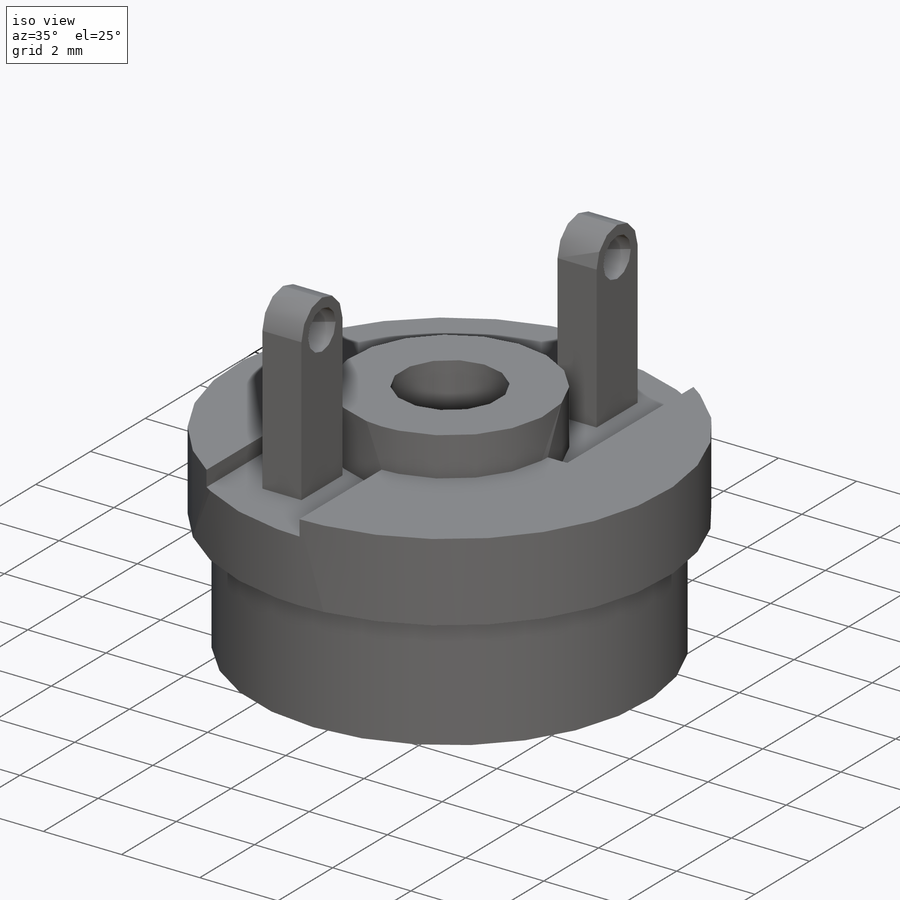
[diagram: iso view]
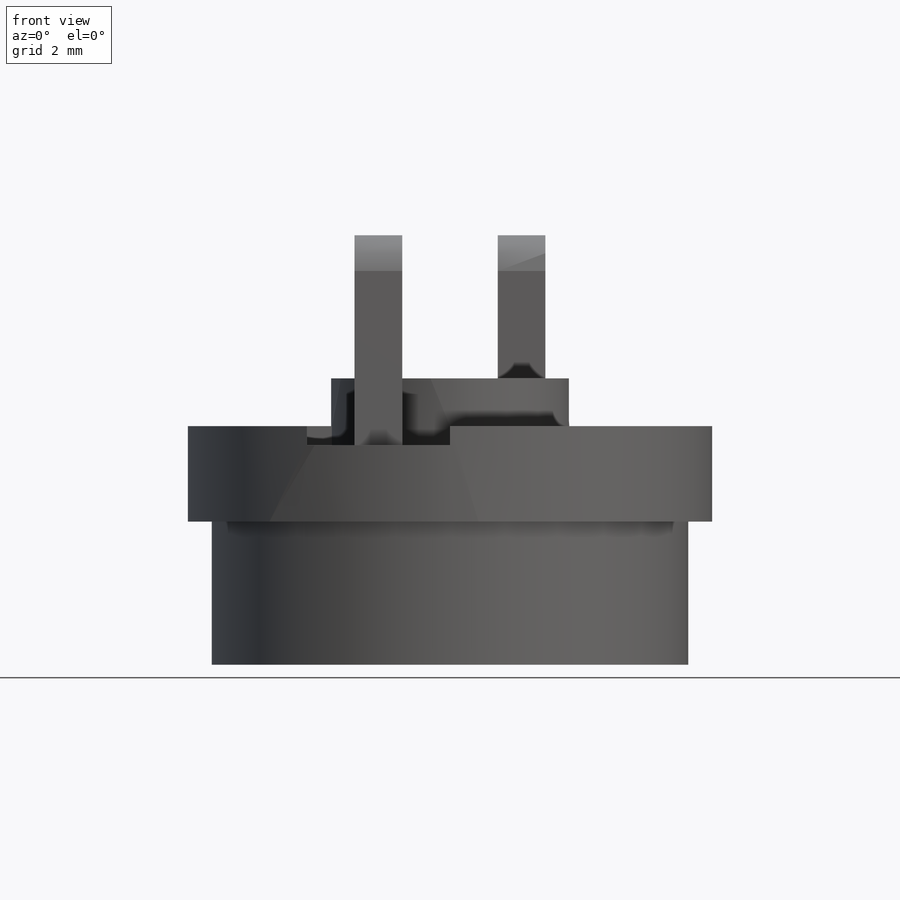
[diagram: front view]
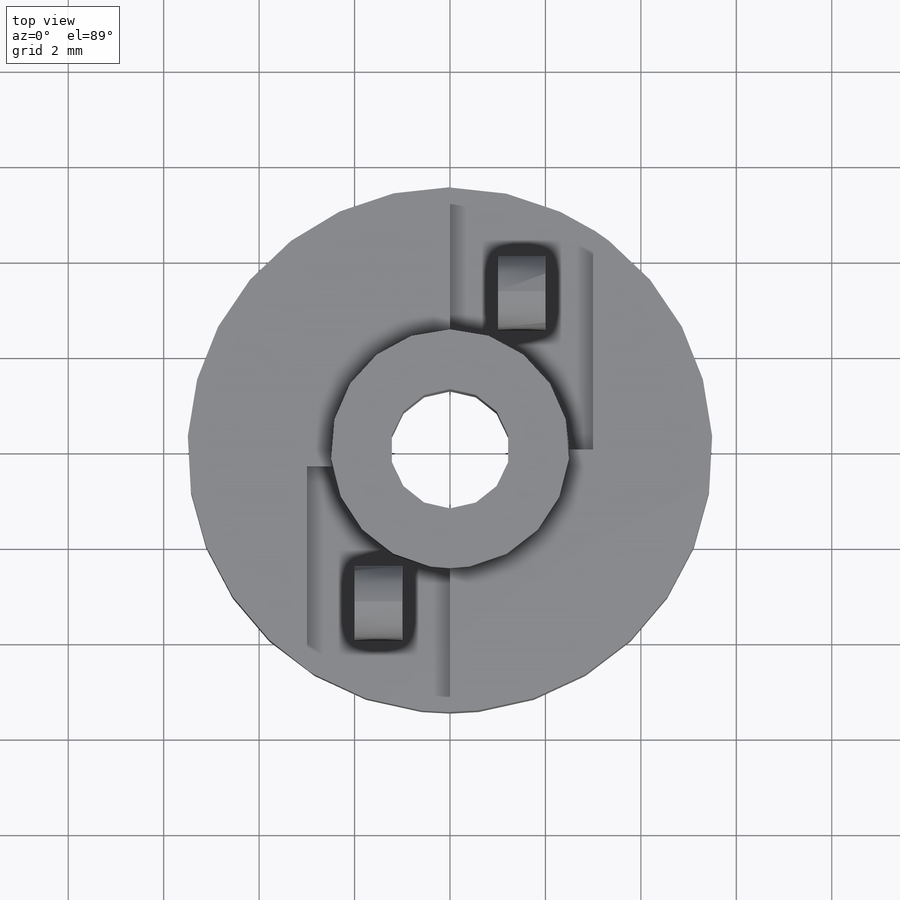
[diagram: top view]
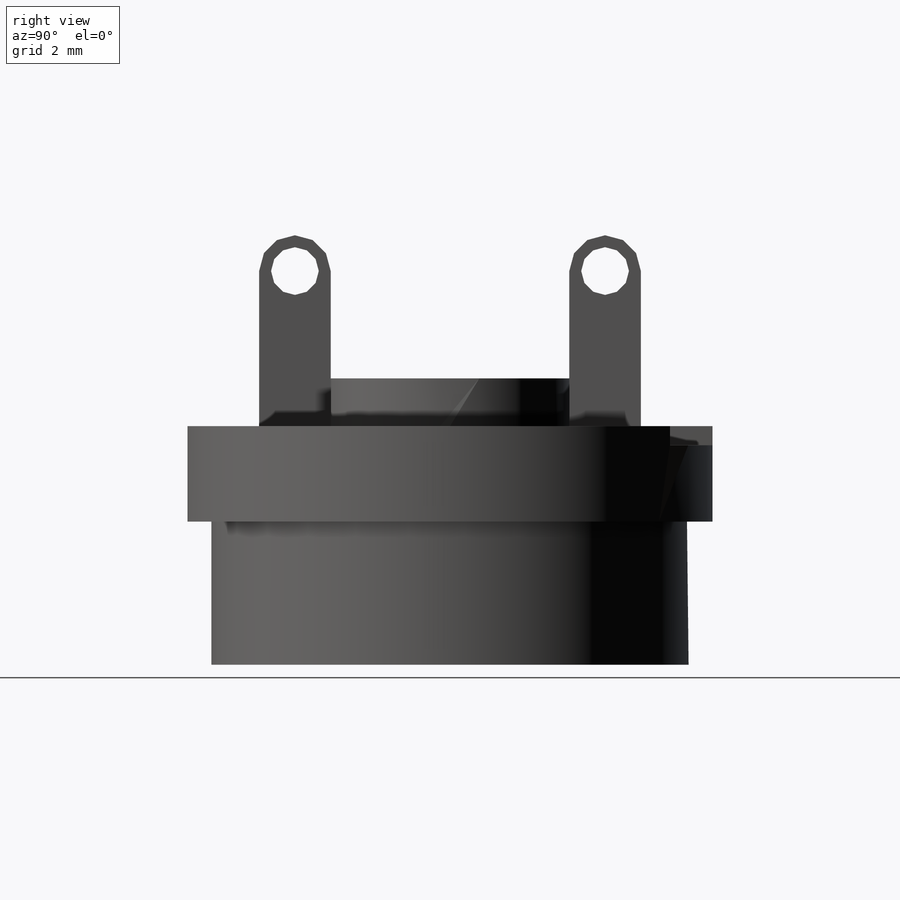
[diagram: right view]
SOLIDWORKS PART (.sldprt)
format: sldprt  version: not decoded by parser v0  size: 571,904 bytes
history: native  units: mm
features: sketch x11, extrude x10, plane x5, fillet x2, material x1, cut_extrude x1 + 1 further entry (+10 scaffold rows collapsed)
feature tree (41):
  scaffold x10  (default folders/planes/origin — collapsed)
  material  "ABS"
  "Corps de surface"
  plane  "Face"
  plane  "Dessus"
  plane  "Droite"
  sketch  "Esquisse1"  dims[D1=11.0mm D2=18.3mm]
  extrude  "Base-Extrusion"  Depth=2mm
  sketch  "Esquisse15"  dims[D1=10.0mm]
  extrude  "Extrusion1"  Depth=3mm
  sketch  "Esquisse5"  dims[D1=5.0mm D2=8.0mm]
  extrude  "Boss.-Extru.2"  Depth=1mm
  sketch  "Esquisse6"  dims[D1=2.5mm]
  cut_extrude  "Enlèv. mat.-Extru.3"  [1 undecoded]
  plane  "Plan1"  Offset=11mm
  plane  "Plan2"  Offset=2.4mm
  sketch  "Esquisse14"  dims[c1.D1=5.0mm c1.D2=~7.753501mm c1.D3=5.0mm c2.D1=3.0mm c2.D2=3.0mm c2.D4=~2.474559mm c2.D5=~7.512642mm c2.D6=~7.576716mm]
  extrude  "Enlèv. mat.-Extru.7"  Depth=0.4mm
  sketch  "Esquisse16"  dims[D1=9.0mm]
  extrude  "Enlèv. mat.-Extru.8"  Depth=3mm
  sketch  "Esquisse17"  dims[D1=1.0mm D2=1.5mm D3=1.0mm D4=2.5mm D5=1.0mm D6=1.5mm D7=1.0mm D8=2.5mm]
  extrude  "Enlèv. mat.-Extru.9"  Depth=5mm
  sketch  "Esquisse18"  dims[D1=6.0mm]
  sketch  "Esquisse20"  dims[D1=6.0mm]
  extrude  "Extrusion3"  [1 undecoded]
  fillet  "Congé2"  Radius=0.75mm
  sketch  "Esquisse21"  dims[D1=1.0mm]
  extrude  "Enlèv. mat.-Extru.11"  [1 undecoded]
  extrude  "Extrusion4"  [1 undecoded]
  fillet  "Congé3"  Radius=0.75mm
  sketch  "Esquisse19"  dims[D1=1.0mm]
  extrude  "Enlèv. mat.-Extru.12"  [1 undecoded]
decode coverage: 19 of 24 modeling features carry decoded parameters; 1 rows unclassified (native names shown)
note: ~ marks probable driven/reference dimensions
note: 5 parameter values undecoded
summary: no parameter record found for 5 features
note: suppression state not decoded; provenance and decode notes live in map.json
